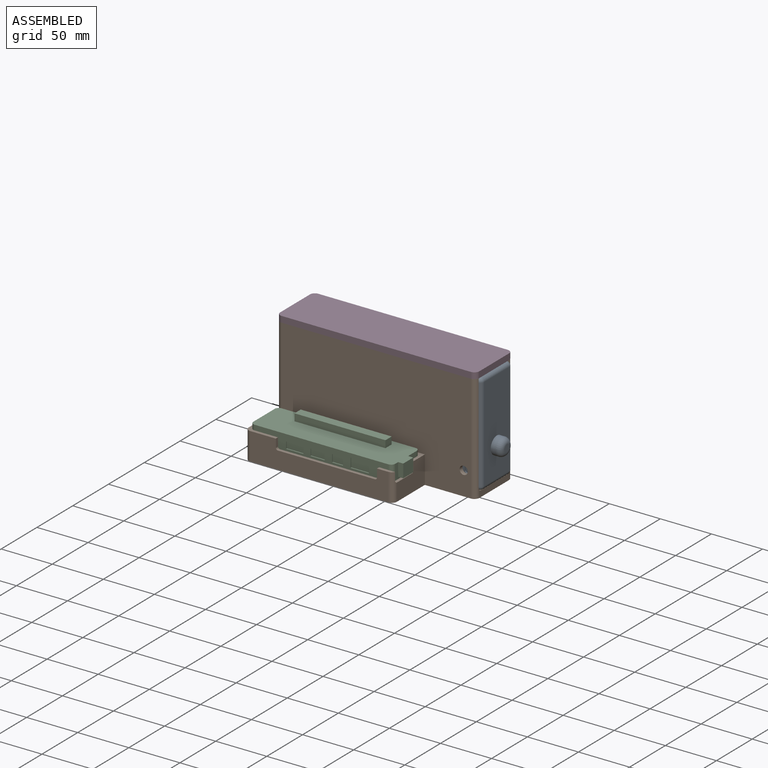
[diagram: assembled view]
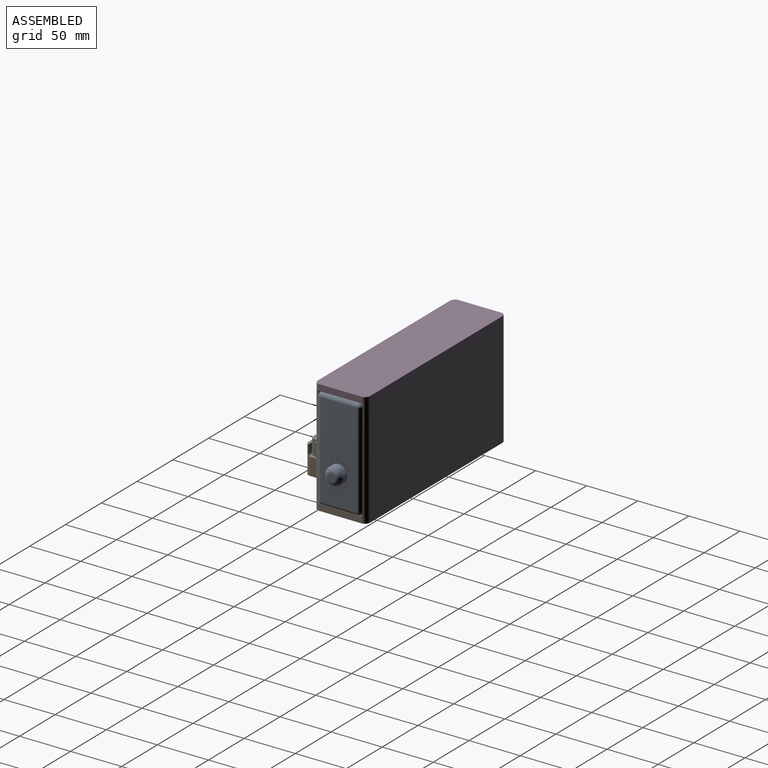
[diagram: assembled view, second angle]
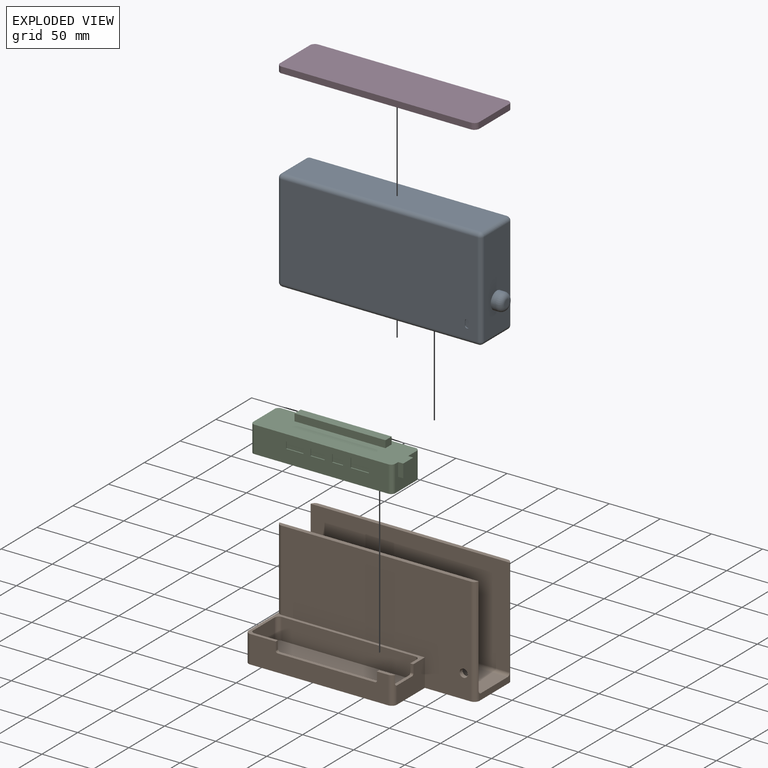
[diagram: exploded view]
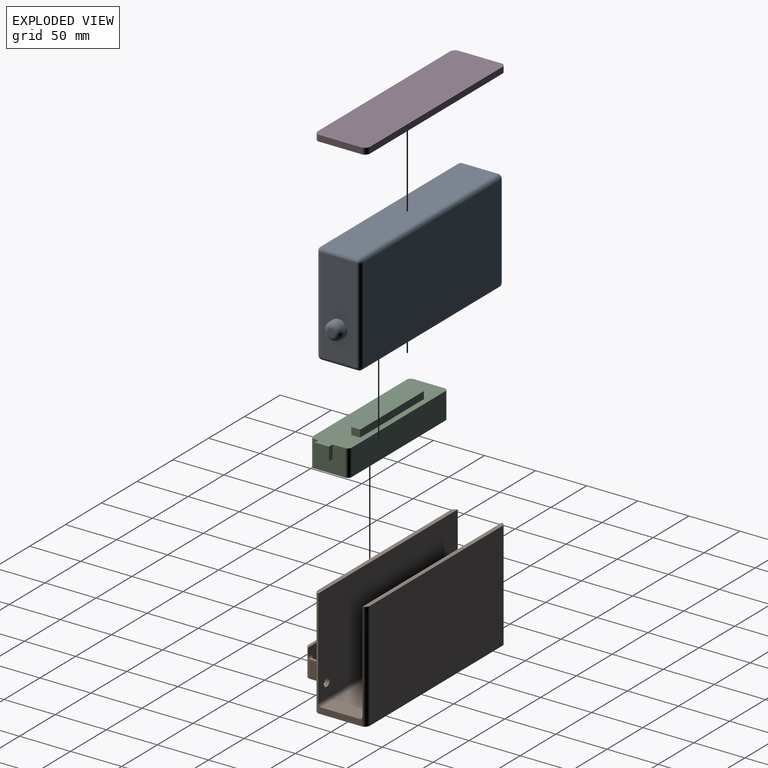
[diagram: exploded view, second angle]
ASSEMBLY  parts=4 mates=3
PART A: 50 faces, bbox 43.2x210x100 mm
  f0: plane 92x35.2mm, normal (0,-1,0), area 2508.8mm2, adj f6,f10,f11,f12,f38,f39,f40,f47
  f1: plane 192x92mm, normal (1,0,0), area 17634.6mm2, adj f9,f10,f19,f20,f26,f27,f28,f29
  f2: plane 92x35.2mm, normal (0,1,0), area 3011.4mm2, adj f14,f19,f22,f25,f35
  f3: plane 192x35.2mm, normal (0,0,1), area 6758.4mm2, adj f11,f20,f21,f25
  f4: plane 192x35.2mm, normal (0,0,-1), area 6758.4mm2, adj f6,f9,f13,f14
  f5: plane 192x92mm, normal (-1,0,0), area 17664mm2, adj f12,f13,f21,f22
  f6: cylinder r=4mm len=35.2mm, axis (1,0,0), area 221.2mm2, adj f0,f4,f7,f8
  f7: sphere r=4mm, area 25.1mm2, adj f6,f9,f10
  f8: sphere r=4mm, area 25.1mm2, adj f6,f12,f13
  f9: cylinder r=4mm len=192mm, axis (0,-1,0), area 1206.4mm2, adj f1,f4,f7,f15
  f10: cylinder r=4mm len=92mm, axis (0,0,1), area 578.1mm2, adj f0,f1,f7,f16
  f11: cylinder r=4mm len=35.2mm, axis (-1,0,0), area 221.2mm2, adj f0,f3,f16,f17
  f12: cylinder r=4mm len=92mm, axis (0,0,-1), area 578.1mm2, adj f0,f5,f8,f17
  f13: cylinder r=4mm len=192mm, axis (0,1,0), area 1206.4mm2, adj f4,f5,f8,f18
  f14: cylinder r=4mm len=35.2mm, axis (-1,0,0), area 221.2mm2, adj f2,f4,f15,f18
  f15: sphere r=4mm, area 25.1mm2, adj f9,f14,f19
  f16: sphere r=4mm, area 25.1mm2, adj f10,f11,f20
  f17: sphere r=4mm, area 25.1mm2, adj f11,f12,f21
  f18: sphere r=4mm, area 25.1mm2, adj f13,f14,f22
  f19: cylinder r=4mm len=92mm, axis (0,0,-1), area 578.1mm2, adj f1,f2,f15,f23
  f20: cylinder r=4mm len=192mm, axis (0,1,0), area 1206.4mm2, adj f1,f3,f16,f23
  f21: cylinder r=4mm len=192mm, axis (0,-1,0), area 1206.4mm2, adj f3,f5,f17,f24
  f22: cylinder r=4mm len=92mm, axis (0,0,1), area 578.1mm2, adj f2,f5,f18,f24
  f23: sphere r=4mm, area 25.1mm2, adj f19,f20,f25
  f24: sphere r=4mm, area 25.1mm2, adj f21,f22,f25
  f25: cylinder r=4mm len=35.2mm, axis (1,0,0), area 221.2mm2, adj f2,f3,f23,f24
  f26: plane 1x0.1mm, normal (0,0,1), area 0.1mm2, adj f1,f27,f33,f34
  f27: cylinder r=2mm len=2mm, axis (1,0,0), area 3.1mm2, adj f1,f26,f28,f34
  f28: plane 4x1mm, normal (0,-1,0), area 4mm2, adj f1,f27,f29,f34
  f29: cylinder r=2mm len=2mm, axis (1,0,0), area 3.1mm2, adj f1,f28,f30,f34
  f30: plane 1x0.1mm, normal (0,0,-1), area 0.1mm2, adj f1,f29,f31,f34
  f31: cylinder r=2mm len=2mm, axis (1,0,0), area 3.1mm2, adj f1,f30,f32,f34
  f32: plane 4x1mm, normal (0,1,0), area 4mm2, adj f1,f31,f33,f34
  f33: cylinder r=2mm len=2mm, axis (1,0,0), area 3.1mm2, adj f1,f26,f32,f34
  f34: plane 8x4.1mm, normal (1,0,0), area 29.4mm2, adj f26,f27,f28,f29,f30,f31,f32,f33
  f35: cylinder r=8.5mm len=17mm, axis (0,-1,0), area 267mm2, adj f2,f37
  f36: plane 7x7mm, normal (0,1,0), area 38.5mm2, adj f37
  f37: torus R=3.5mm, axis (0,1,0), area 329.8mm2, adj f35,f36
  f38: plane 24x10mm, normal (0,0,1), area 240mm2, adj f0,f39,f47,f48
  f39: plane 30.4x10mm, normal (-1,0,0), area 304mm2, adj f0,f38,f40,f48
  f40: plane 24x10mm, normal (0,0,-1), area 240mm2, adj f0,f39,f47,f48
  f41: plane 24x10mm, normal (-1,0,0), area 240mm2, adj f42,f46,f48,f49
  f42: plane 12.58x10mm, normal (-0.02,0,1), area 125.8mm2, adj f41,f43,f48,f49
  f43: plane 10x5.71mm, normal (0.72,0,0.69), area 78.7mm2, adj f42,f44,f48,f49
  f44: plane 13x10mm, normal (1,0,0), area 130mm2, adj f43,f45,f48,f49
  f45: plane 10x5.5mm, normal (0.71,0,-0.7), area 77.3mm2, adj f44,f46,f48,f49
  f46: plane 12.58x10mm, normal (0,0,-1), area 125.8mm2, adj f41,f45,f48,f49
  f47: plane 30.4x10mm, normal (1,0,0), area 304mm2, adj f0,f38,f40,f48
  f48: plane 30.4x24mm, normal (0,-1,0), area 325.5mm2, adj f38,f39,f40,f41,f42,f43,f44,f45
  f49: plane 24.21x18mm, normal (0,-1,0), area 404.1mm2, adj f41,f42,f43,f44,f45,f46
PART B: 42 faces, bbox 95.3x195x106 mm
  f0: plane 30x21mm, normal (0,1,0), area 420.9mm2, adj f2,f15,f19,f20,f33,f34,f36
  f1: plane 15.58x3mm, normal (0,0,1), area 42.9mm2, adj f3,f4,f17,f26
  f2: plane 145x48mm, normal (0,0,1), area 687.9mm2, adj f0,f3,f4,f5,f6,f9,f10,f13
  f3: plane 137.58x21mm, normal (1,0,0), area 1815.4mm2, adj f1,f2,f15,f16,f17,f18,f26,f31
  f4: plane 135x27mm, normal (-1,0,0), area 2656.7mm2, adj f1,f2,f12,f16,f17,f18,f26,f27
  f5: plane 39x27mm, normal (0,-1,0), area 823.9mm2, adj f2,f6,f12,f19,f20,f26,f36
  f6: plane 185.1x106mm, normal (-1,0,0), area 15787.7mm2, adj f2,f5,f12,f24,f25,f28,f39
  f7: plane 41.3x6.76mm, normal (0,-1,0), area 248.8mm2, adj f11,f12,f28,f29,f40,f41
  f8: plane 185x106mm, normal (1,0,0), area 19610mm2, adj f12,f22,f29,f30
  f9: plane 46.3x27mm, normal (0,1,0), area 364.2mm2, adj f2,f10,f11,f12,f23,f30,f40,f41
  f10: plane 39x27mm, normal (0,1,0), area 1053mm2, adj f2,f9,f12,f27
  f11: plane 195x37.3mm, normal (0,0,1), area 7273.5mm2, adj f7,f9,f40,f41
  f12: plane 195x95.3mm, normal (0,0,-1), area 16356.7mm2, adj f4,f5,f6,f7,f8,f9,f10,f26
  f13: plane 30x21mm, normal (0,-1,0), area 630mm2, adj f2,f15,f31,f32
  f14: plane 131x21mm, normal (-1,0,0), area 2751mm2, adj f2,f15,f32,f33
  f15: plane 139x38mm, normal (0,0,1), area 5268.3mm2, adj f0,f3,f13,f14,f31,f32,f33,f34
  f16: plane 8x3mm, normal (0,-1,0), area 24mm2, adj f2,f3,f4,f37
  f17: plane 8x3mm, normal (0,1,0), area 24mm2, adj f1,f3,f4,f38
  f18: plane 95x3mm, normal (0,0,1), area 285mm2, adj f3,f4,f37,f38
  f19: plane 8x3mm, normal (-1,0,0), area 24mm2, adj f0,f2,f5,f36
  f20: plane 21x3.54mm, normal (0,0,1), area 63.3mm2, adj f0,f5,f34,f35,f36
  f21: plane 194.8x97mm, normal (-1,0,0), area 18895.4mm2, adj f22,f29,f30,f40
  f22: plane 194.8x4mm, normal (0,0,1), area 769.3mm2, adj f8,f21,f29,f30
  f23: plane 194.9x97mm, normal (1,0,0), area 18854.9mm2, adj f9,f24,f25,f28,f39,f41
  f24: plane 194.9x4mm, normal (0,0,1), area 769.7mm2, adj f6,f23,f25,f28
  f25: cylinder r=5mm len=79mm, axis (0,0,1), area 540.9mm2, adj f2,f6,f23,f24
  f26: cylinder r=5mm len=27mm, axis (0,0,-1), area 192.4mm2, adj f1,f3,f4,f5,f12,f35
  f27: cylinder r=5mm len=27mm, axis (0,0,1), area 212.1mm2, adj f2,f4,f10,f12
  f28: cylinder r=5mm len=106mm, axis (0,0,1), area 733.3mm2, adj f6,f7,f12,f23,f24,f41
  f29: cylinder r=5mm len=106mm, axis (0,0,-1), area 733.3mm2, adj f7,f8,f12,f21,f22,f40
  f30: cylinder r=5mm len=106mm, axis (0,0,-1), area 733.3mm2, adj f8,f9,f12,f21,f22,f40
  f31: cylinder r=4mm len=21mm, axis (0,0,-1), area 131.9mm2, adj f2,f3,f13,f15
  f32: cylinder r=4mm len=21mm, axis (0,0,1), area 131.9mm2, adj f2,f13,f14,f15
  f33: cylinder r=4mm len=21mm, axis (0,0,-1), area 131.9mm2, adj f0,f2,f14,f15
  f34: cylinder r=4mm len=13mm, axis (0,0,1), area 72.3mm2, adj f0,f3,f15,f20,f35
  f35: cylinder r=2mm len=7mm, axis (0,1,0), area 15.2mm2, adj f3,f20,f26,f34
  f36: cylinder r=2mm len=3mm, axis (0,1,0), area 9.4mm2, adj f0,f5,f19,f20
  f37: cylinder r=2mm len=3mm, axis (-1,0,0), area 9.4mm2, adj f3,f4,f16,f18
  f38: cylinder r=2mm len=3mm, axis (1,0,0), area 9.4mm2, adj f3,f4,f17,f18
  f39: cylinder r=4mm len=8mm, axis (-1,0,0), area 100.5mm2, adj f6,f23
  f40: cylinder r=3mm len=195mm, axis (0,-1,0), area 918.7mm2, adj f7,f9,f11,f21,f29,f30
  f41: cylinder r=3mm len=195mm, axis (0,1,0), area 918.8mm2, adj f7,f9,f11,f23,f28
PART C: 39 faces, bbox 144x38x33 mm
  f0: plane 144x38mm, normal (0,0,1), area 4564mm2, adj f1,f2,f3,f4,f6,f7,f8,f9
  f1: plane 30x26mm, normal (1,0,0), area 598mm2, adj f0,f5,f8,f9,f30,f31,f32
  f2: plane 131x26mm, normal (0,-1,0), area 2964.9mm2, adj f0,f5,f7,f8,f10,f11,f12,f13
  f3: plane 131x26mm, normal (0,1,0), area 3406mm2, adj f0,f5,f6,f9
  f4: plane 30x26mm, normal (-1,0,0), area 780mm2, adj f0,f5,f6,f7
  f5: plane 139x38mm, normal (0,0,-1), area 5268.3mm2, adj f1,f2,f3,f4,f6,f7,f8,f9
  f6: cylinder r=4mm len=26mm, axis (0,0,1), area 163.4mm2, adj f0,f3,f4,f5
  f7: cylinder r=4mm len=26mm, axis (0,0,-1), area 163.4mm2, adj f0,f2,f4,f5
  f8: cylinder r=4mm len=26mm, axis (0,0,1), area 163.4mm2, adj f0,f1,f2,f5
  f9: cylinder r=4mm len=26mm, axis (0,0,-1), area 163.4mm2, adj f0,f1,f3,f5
  f10: plane 9x1mm, normal (1,0,0), area 9mm2, adj f2,f11,f13,f14
  f11: plane 18x1mm, normal (0,0,1), area 18mm2, adj f2,f10,f12,f14
  f12: plane 9x1mm, normal (-1,0,0), area 9mm2, adj f2,f11,f13,f14
  f13: plane 18x1mm, normal (0,0,-1), area 18mm2, adj f2,f10,f12,f14
  f14: plane 18x9mm, normal (0,-1,0), area 162mm2, adj f10,f11,f12,f13
  f15: plane 10.7x1mm, normal (0,0,1), area 10.7mm2, adj f2,f16,f18,f19
  f16: plane 7.4x1mm, normal (-1,0,0), area 7.4mm2, adj f2,f15,f17,f19
  f17: plane 10.7x1mm, normal (0,0,-1), area 10.7mm2, adj f2,f16,f18,f19
  f18: plane 7.4x1mm, normal (1,0,0), area 7.4mm2, adj f2,f15,f17,f19
  f19: plane 10.7x7.4mm, normal (0,-1,0), area 79.2mm2, adj f15,f16,f17,f18
  f20: plane 13.8x1mm, normal (0,0,1), area 13.8mm2, adj f2,f21,f23,f24
  f21: plane 6.6x1mm, normal (-1,0,0), area 6.6mm2, adj f2,f20,f22,f24
  f22: plane 13.8x1mm, normal (0,0,-1), area 13.8mm2, adj f2,f21,f23,f24
  f23: plane 6.6x1mm, normal (1,0,0), area 6.6mm2, adj f2,f20,f22,f24
  f24: plane 13.8x6.6mm, normal (0,-1,0), area 91.1mm2, adj f20,f21,f22,f23
  f25: plane 17x1mm, normal (0,0,1), area 17mm2, adj f2,f26,f28,f29
  f26: plane 6.4x1mm, normal (-1,0,0), area 6.4mm2, adj f2,f25,f27,f29
  f27: plane 17x1mm, normal (0,0,-1), area 17mm2, adj f2,f26,f28,f29
  f28: plane 6.4x1mm, normal (1,0,0), area 6.4mm2, adj f2,f25,f27,f29
  f29: plane 17x6.4mm, normal (0,-1,0), area 108.8mm2, adj f25,f26,f27,f28
  f30: plane 13x5mm, normal (0,-1,0), area 65mm2, adj f0,f1,f31,f33
  f31: plane 14x5mm, normal (0,0,-1), area 70mm2, adj f1,f30,f32,f33
  f32: plane 13x5mm, normal (0,1,0), area 65mm2, adj f0,f1,f31,f33
  f33: plane 14x13mm, normal (1,0,0), area 182mm2, adj f0,f30,f31,f32
  f34: plane 89x7mm, normal (0,1,0), area 623mm2, adj f0,f35,f37,f38
  f35: plane 8.7x7mm, normal (-1,0,0), area 60.9mm2, adj f0,f34,f36,f38
  f36: plane 89x7mm, normal (0,-1,0), area 623mm2, adj f0,f35,f37,f38
  f37: plane 8.7x7mm, normal (1,0,0), area 60.9mm2, adj f0,f34,f36,f38
  f38: plane 89x8.7mm, normal (0,0,1), area 774.3mm2, adj f34,f35,f36,f37
PART D: 11 faces, bbox 51.3x194.9x6 mm
  f0: cylinder r=5mm len=6mm, axis (0,0,-1), area 41.1mm2, adj f1,f3,f4,f6
  f1: plane 185x6mm, normal (1,0,0), area 1110mm2, adj f0,f2,f3,f4
  f2: cylinder r=5mm len=6mm, axis (0,0,-1), area 41.1mm2, adj f1,f3,f4,f7
  f3: plane 194.9x51.3mm, normal (0,0,1), area 9978.2mm2, adj f0,f1,f2,f5,f6,f7,f8,f9
  f4: plane 194.9x51.3mm, normal (0,0,-1), area 9978.2mm2, adj f0,f1,f2,f5,f6,f7,f8,f9
  f5: cylinder r=5mm len=6mm, axis (0,0,-1), area 41.1mm2, adj f3,f4,f6,f10
  f6: plane 43.3x6mm, normal (0,-1,0), area 259.8mm2, adj f0,f3,f4,f5
  f7: plane 6x0.1mm, normal (1,0,0), area 0.6mm2, adj f2,f3,f4,f8
  f8: plane 43.3x6mm, normal (0,1,0), area 259.8mm2, adj f3,f4,f7,f9
  f9: cylinder r=5mm len=6mm, axis (0,0,-1), area 41.1mm2, adj f3,f4,f8,f10
  f10: plane 185.1x6mm, normal (-1,0,0), area 1110.6mm2, adj f3,f4,f5,f9
PLACE A rot(axis=(0,0,-1),90deg) t=(-33.78,-2.11,10.57)mm
PLACE B rot(axis=(0,0,1),90deg) t=(-32.79,-27.76,-35.05)mm
PLACE C t=(-37.92,-50.45,-29.05)mm
PLACE D rot(axis=(0,0,-1),90deg) t=(5.9,23.54,-35.05)mm
MATE fastened D.f4 <-> B.f24  axis (0,0,-1) through (-13.47,-27.76,70.95)mm
MATE fastened A.f4 <-> B.f11  axis (0,0,-1) through (-13.42,-2.11,-29.05)mm
MATE fastened C.f5 <-> B.f15  axis (0,0,-1) through (-38.42,-49.76,-29.05)mm
